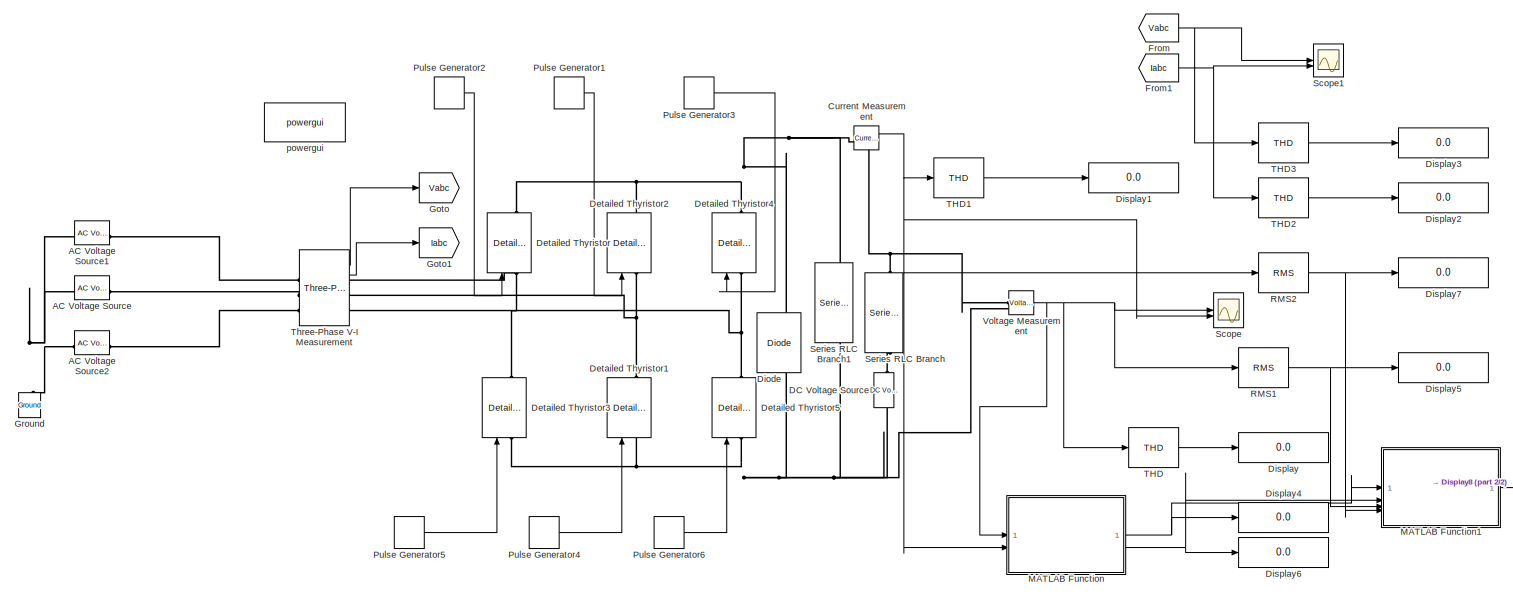
[diagram: root canvas - part 1/2, most of the canvas]
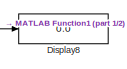
[diagram: root canvas - part 2/2, bottom right region]
MODEL slx_e2c894dc56c5
KIND model
CONFIG AbsTol = auto
CONFIG EnableMultiTasking = off
CONFIG FixedStep = auto
CONFIG MaxStep = auto
CONFIG MinStep = auto
CONFIG RelTol = 1e-3
CONFIG SampleTimeConstraint = Unconstrained
CONFIG SolverName = VariableStepAuto
CONFIG StartTime = 0.0
CONFIG StopTime = 0.5
BLOCK [Reference] AC Voltage Source  REF=spsACVoltageSourceLib/AC Voltage Source
  LibrarySourceBlock = sps_lib/Sources/AC Voltage Source
  NameLocation = left
  SourceBlock = spsACVoltageSourceLib/AC Voltage Source
  SourceType = AC Voltage Source
BLOCK [Reference] AC Voltage Source1  REF=spsACVoltageSourceLib/AC Voltage Source
  LibrarySourceBlock = sps_lib/Sources/AC Voltage Source
  NameLocation = left
  SourceBlock = spsACVoltageSourceLib/AC Voltage Source
  SourceType = AC Voltage Source
BLOCK [Reference] AC Voltage Source2  REF=spsACVoltageSourceLib/AC Voltage Source
  LibrarySourceBlock = sps_lib/Sources/AC Voltage Source
  NameLocation = left
  SourceBlock = spsACVoltageSourceLib/AC Voltage Source
  SourceType = AC Voltage Source
BLOCK [Reference] Current Measurement  REF=spsCurrentMeasurementLib/Current Measurement
  LibrarySourceBlock = sps_lib/Sensors and Measurements/Current Measurement
  SourceBlock = spsCurrentMeasurementLib/Current Measurement
  SourceType = Current Measurement
  UserDataPersistent = on
BLOCK [Reference] DC Voltage Source  REF=spsDCVoltageSourceLib/DC Voltage Source
  LibrarySourceBlock = sps_lib/Sources/DC Voltage Source
  SourceBlock = spsDCVoltageSourceLib/DC Voltage Source
  SourceType = DC Voltage Source
BLOCK [Reference] Detailed Thyristor  REF=spsDetailedThyristorLib/Detailed Thyristor
  LibrarySourceBlock = sps_lib/Power Electronics/Detailed Thyristor
  NameLocation = right
  SourceBlock = spsDetailedThyristorLib/Detailed Thyristor
  SourceType = Detailed Thyristor
BLOCK [Reference] Detailed Thyristor1  REF=spsDetailedThyristorLib/Detailed Thyristor
  LibrarySourceBlock = sps_lib/Power Electronics/Detailed Thyristor
  NameLocation = right
  SourceBlock = spsDetailedThyristorLib/Detailed Thyristor
  SourceType = Detailed Thyristor
BLOCK [Reference] Detailed Thyristor2  REF=spsDetailedThyristorLib/Detailed Thyristor
  LibrarySourceBlock = sps_lib/Power Electronics/Detailed Thyristor
  NameLocation = right
  SourceBlock = spsDetailedThyristorLib/Detailed Thyristor
  SourceType = Detailed Thyristor
BLOCK [Reference] Detailed Thyristor3  REF=spsDetailedThyristorLib/Detailed Thyristor
  LibrarySourceBlock = sps_lib/Power Electronics/Detailed Thyristor
  NameLocation = right
  SourceBlock = spsDetailedThyristorLib/Detailed Thyristor
  SourceType = Detailed Thyristor
BLOCK [Reference] Detailed Thyristor4  REF=spsDetailedThyristorLib/Detailed Thyristor
  LibrarySourceBlock = sps_lib/Power Electronics/Detailed Thyristor
  NameLocation = right
  SourceBlock = spsDetailedThyristorLib/Detailed Thyristor
  SourceType = Detailed Thyristor
BLOCK [Reference] Detailed Thyristor5  REF=spsDetailedThyristorLib/Detailed Thyristor
  LibrarySourceBlock = sps_lib/Power Electronics/Detailed Thyristor
  NameLocation = right
  SourceBlock = spsDetailedThyristorLib/Detailed Thyristor
  SourceType = Detailed Thyristor
BLOCK [Reference] Diode  REF=spsDiodeLib/Diode
  LibrarySourceBlock = sps_lib/Power Electronics/Diode
  NameLocation = right
  SourceBlock = spsDiodeLib/Diode
  SourceType = Diode
BLOCK [Display] Display
  Decimation = 1
BLOCK [Display] Display1
  Decimation = 1
BLOCK [Display] Display2
  Decimation = 1
BLOCK [Display] Display3
  Decimation = 1
BLOCK [Display] Display4
  Decimation = 1
BLOCK [Display] Display5
  Decimation = 1
BLOCK [Display] Display6
  Decimation = 1
BLOCK [Display] Display7
  Decimation = 1
BLOCK [Display] Display8
  Decimation = 1
BLOCK [From] From
  GotoTag = Vabc
BLOCK [From] From1
  GotoTag = Iabc
BLOCK [Goto] Goto
  GotoTag = Vabc
BLOCK [Goto] Goto1
  GotoTag = Iabc
BLOCK [Reference] Ground  REF=spsGroundLib/Ground
  LibrarySourceBlock = sps_lib/Utilities/Ground
  NameLocation = right
  SourceBlock = spsGroundLib/Ground
  SourceType = Ground
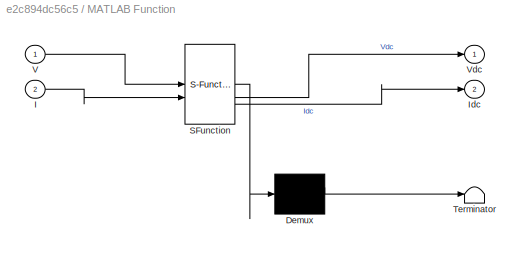
BLOCK [SubSystem] MATLAB Function
  ErrorFcn = Stateflow.Translate.translate
  PermitHierarchicalResolution = ExplicitOnly
  SFBlockType = MATLAB Function
  TreatAsAtomicUnit = on
BLOCK [Demux] MATLAB Function/ Demux 
  Outputs = 1
BLOCK [S-Function] MATLAB Function/ SFunction 
  EnableBusSupport = on
  FunctionName = sf_sfun
  PortCounts = [2 3]
  SFcnIsStateOwnerBlock = off
  SFunctionDeploymentMode = off
  Tag = Stateflow S-Function 2
BLOCK [Terminator] MATLAB Function/ Terminator 
BLOCK [Inport] MATLAB Function/I
  Port = 2
BLOCK [Outport] MATLAB Function/Idc
  Port = 2
BLOCK [Inport] MATLAB Function/V
BLOCK [Outport] MATLAB Function/Vdc
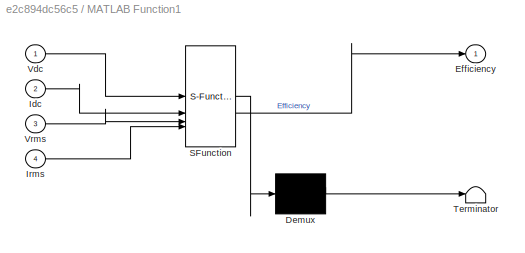
BLOCK [SubSystem] MATLAB Function1
  ErrorFcn = Stateflow.Translate.translate
  PermitHierarchicalResolution = ExplicitOnly
  SFBlockType = MATLAB Function
  TreatAsAtomicUnit = on
BLOCK [Demux] MATLAB Function1/ Demux 
  Outputs = 1
BLOCK [S-Function] MATLAB Function1/ SFunction 
  EnableBusSupport = on
  FunctionName = sf_sfun
  PortCounts = [4 2]
  SFcnIsStateOwnerBlock = off
  SFunctionDeploymentMode = off
  Tag = Stateflow S-Function 1
BLOCK [Terminator] MATLAB Function1/ Terminator 
BLOCK [Outport] MATLAB Function1/Efficiency
BLOCK [Inport] MATLAB Function1/Idc
  Port = 2
BLOCK [Inport] MATLAB Function1/Irms
  Port = 4
BLOCK [Inport] MATLAB Function1/Vdc
BLOCK [Inport] MATLAB Function1/Vrms
  Port = 3
BLOCK [DiscretePulseGenerator] Pulse Generator1
  Period = 0.02
  PhaseDelay = 0.01
  PulseType = Time based
  PulseWidth = 33.35
BLOCK [DiscretePulseGenerator] Pulse Generator2
  Period = 0.02
  PhaseDelay = 0.0033
  PulseType = Time based
  PulseWidth = 33.35
BLOCK [DiscretePulseGenerator] Pulse Generator3
  Period = 0.02
  PhaseDelay = 0.01663
  PulseType = Time based
  PulseWidth = 33.35
BLOCK [DiscretePulseGenerator] Pulse Generator4
  Period = 0.02
  PhaseDelay = 0.02
  PulseType = Time based
  PulseWidth = 33.35
BLOCK [DiscretePulseGenerator] Pulse Generator5
  Period = 0.02
  PhaseDelay = 0.01333
  PulseType = Time based
  PulseWidth = 33.35
BLOCK [DiscretePulseGenerator] Pulse Generator6
  Period = 0.02
  PhaseDelay = 0.00663
  PulseType = Time based
  PulseWidth = 33.35
BLOCK [Reference] RMS1  REF=spsRMSLib/RMS
  LibrarySourceBlock = sps_lib/Sensors and Measurements/RMS
  SourceBlock = spsRMSLib/RMS
  SourceType = RMS
BLOCK [Reference] RMS2  REF=spsRMSLib/RMS
  LibrarySourceBlock = sps_lib/Sensors and Measurements/RMS
  SourceBlock = spsRMSLib/RMS
  SourceType = RMS
BLOCK [Scope] Scope
  Floating = off
  NumInputPorts = 2
  ScopeSpecificationString = Simulink.scopes.TimeScopeBlockCfg('CurrentConfiguration', extmgr.ConfigurationSet(extmgr.Configuration('Core','General UI',true),extmgr.Configuration('Core','Source UI',true),extmgr.Configuration('Sources','WiredSimulink',true),extmgr.Configuration('Visuals','Time Domain',true,'SerializedDisplays',{struct('MinYLimReal','-49.5991','MaxYLimReal','446.35962','YLabelReal','','MinYLimMag','0.00000','Ma...<+2070ch>
BLOCK [Scope] Scope1
  Floating = off
  NumInputPorts = 2
  ScopeSpecificationString = Simulink.scopes.TimeScopeBlockCfg('CurrentConfiguration', extmgr.ConfigurationSet(extmgr.Configuration('Core','General UI',true),extmgr.Configuration('Core','Source UI',true),extmgr.Configuration('Sources','WiredSimulink',true,'DataLoggingVariableName','ScopeData1'),extmgr.Configuration('Visuals','Time Domain',true,'SerializedDisplays',{struct('MinYLimReal','-497.96461','MaxYLimReal','497.96461','...<+2157ch>
BLOCK [Reference] Series RLC Branch  REF=spsSeriesRLCBranchLib/Series RLC Branch
  LibrarySourceBlock = sps_lib/Passives/Series RLC Branch
  NameLocation = left
  SourceBlock = spsSeriesRLCBranchLib/Series RLC Branch
  SourceType = Series RLC Branch
BLOCK [Reference] Series RLC Branch1  REF=spsSeriesRLCBranchLib/Series RLC Branch
  LibrarySourceBlock = sps_lib/Passives/Series RLC Branch
  NameLocation = left
  SourceBlock = spsSeriesRLCBranchLib/Series RLC Branch
  SourceType = Series RLC Branch
BLOCK [Reference] THD  REF=spsTHDLib/THD
  LibrarySourceBlock = sps_lib/Sensors and Measurements/THD
  SourceBlock = spsTHDLib/THD
  SourceType = THD
BLOCK [Reference] THD1  REF=spsTHDLib/THD
  LibrarySourceBlock = sps_lib/Sensors and Measurements/THD
  SourceBlock = spsTHDLib/THD
  SourceType = THD
BLOCK [Reference] THD2  REF=spsTHDLib/THD
  LibrarySourceBlock = sps_lib/Sensors and Measurements/THD
  SourceBlock = spsTHDLib/THD
  SourceType = THD
BLOCK [Reference] THD3  REF=spsTHDLib/THD
  LibrarySourceBlock = sps_lib/Sensors and Measurements/THD
  SourceBlock = spsTHDLib/THD
  SourceType = THD
BLOCK [Reference] Three-Phase V-I Measurement  REF=spsThreePhaseVIMeasurementLib/Three-Phase
V-I Measurement
  LibrarySourceBlock = sps_lib/Sensors and Measurements/Three-Phase\nV-I Measurement
  SourceBlock = spsThreePhaseVIMeasurementLib/Three-Phase\nV-I Measurement
  SourceType = Three-Phase VI Measurement
BLOCK [Reference] Voltage Measurement  REF=spsVoltageMeasurementLib/Voltage Measurement
  LibrarySourceBlock = sps_lib/Sensors and Measurements/Voltage Measurement
  SourceBlock = spsVoltageMeasurementLib/Voltage Measurement
  SourceType = Voltage Measurement
  UserDataPersistent = on
BLOCK [Reference] powergui  REF=sps_lib/powergui
  LibrarySourceBlock = sps_lib/powergui
  Priority = 1
  SourceBlock = sps_lib/powergui
  SourceType = PSB option menu block
NET Current Measurement:1 -> MATLAB Function:2, RMS2:1, Scope:2, THD1:1
NET From1:1 -> Scope1:2, THD2:1
NET From:1 -> Scope1:1, THD3:1
LINE MATLAB Function1:1 -> Display8:1
NET MATLAB Function:1 -> Display4:1, MATLAB Function1:1
NET MATLAB Function:2 -> Display6:1, MATLAB Function1:2
LINE Pulse Generator1:1 -> Detailed Thyristor2:1
LINE Pulse Generator2:1 -> Detailed Thyristor:1
LINE Pulse Generator3:1 -> Detailed Thyristor4:1
LINE Pulse Generator4:1 -> Detailed Thyristor1:1
LINE Pulse Generator5:1 -> Detailed Thyristor3:1
LINE Pulse Generator6:1 -> Detailed Thyristor5:1
NET RMS1:1 -> Display5:1, MATLAB Function1:3
NET RMS2:1 -> Display7:1, MATLAB Function1:4
LINE THD1:1 -> Display1:1
LINE THD2:1 -> Display2:1
LINE THD3:1 -> Display3:1
LINE THD:1 -> Display:1
LINE Three-Phase V-I Measurement:1 -> Goto:1
LINE Three-Phase V-I Measurement:2 -> Goto1:1
NET Voltage Measurement:1 -> MATLAB Function:1, RMS1:1, Scope:1, THD:1
PNET net1: AC Voltage Source1:LConn1 -- AC Voltage Source2:LConn1 -- AC Voltage Source:LConn1 -- Ground:LConn1
PLINE AC Voltage Source1:RConn1 -- Three-Phase V-I Measurement:LConn1
PLINE AC Voltage Source2:RConn1 -- Three-Phase V-I Measurement:LConn3
PLINE AC Voltage Source:RConn1 -- Three-Phase V-I Measurement:LConn2
PNET net2: Current Measurement:LConn1 -- Detailed Thyristor2:RConn1 -- Detailed Thyristor4:RConn1 -- Detailed Thyristor:RConn1 -- Diode:RConn1 -- Series RLC Branch1:LConn1
PNET net3: Current Measurement:RConn1 -- Series RLC Branch:LConn1 -- Voltage Measurement:LConn1
PNET net4: DC Voltage Source:LConn1 -- Detailed Thyristor1:LConn1 -- Detailed Thyristor3:LConn1 -- Detailed Thyristor5:LConn1 -- Diode:LConn1 -- Series RLC Branch1:RConn1 -- Voltage Measurement:LConn2
PLINE DC Voltage Source:RConn1 -- Series RLC Branch:RConn1
PNET net5: Detailed Thyristor1:RConn1 -- Detailed Thyristor2:LConn1 -- Three-Phase V-I Measurement:RConn2
PNET net6: Detailed Thyristor3:RConn1 -- Detailed Thyristor:LConn1 -- Three-Phase V-I Measurement:RConn1
PNET net7: Detailed Thyristor4:LConn1 -- Detailed Thyristor5:RConn1 -- Three-Phase V-I Measurement:RConn3
note: NET lines group one-source signal fan-out (src -> all destinations, sorted); 1:1 wires keep LINE; PNET lines group multi-terminal physical nets as a canonical sorted terminal list (undirected conserving connections); 2-terminal nets keep the pairwise PLINE form
CHART MATLAB Function1 states=1 transitions=1
  STATE_LABEL 'eML_blk_kernel()'
  STATE_LABEL 'SCRIPT:\nfunction Efficiency   = stats(Vdc,Idc,Vrms,Irms)\n\nEfficiency=((Vdc*Idc)/(Vrms*Irms))*100;\n'
CHART MATLAB Function states=1 transitions=1
  STATE_LABEL 'eML_blk_kernel()'
  STATE_LABEL 'SCRIPT:\nfunction [Vdc,Idc]  = stats(V,I)\n\nVdc=mean(V);\nIdc=mean(I);\n'
CHART  states=0 transitions=0
CHART  states=0 transitions=0
